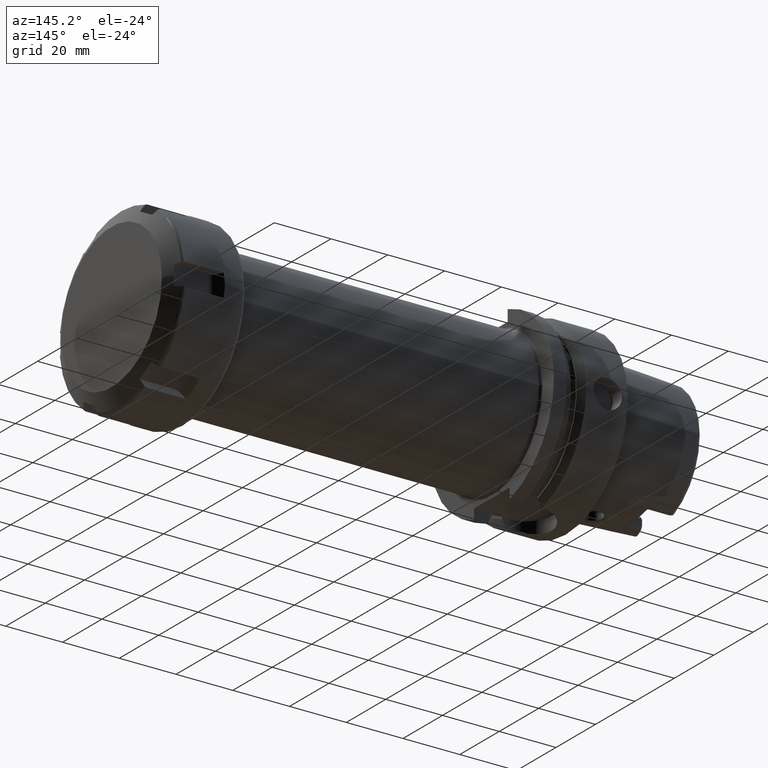
[diagram: clean part render]
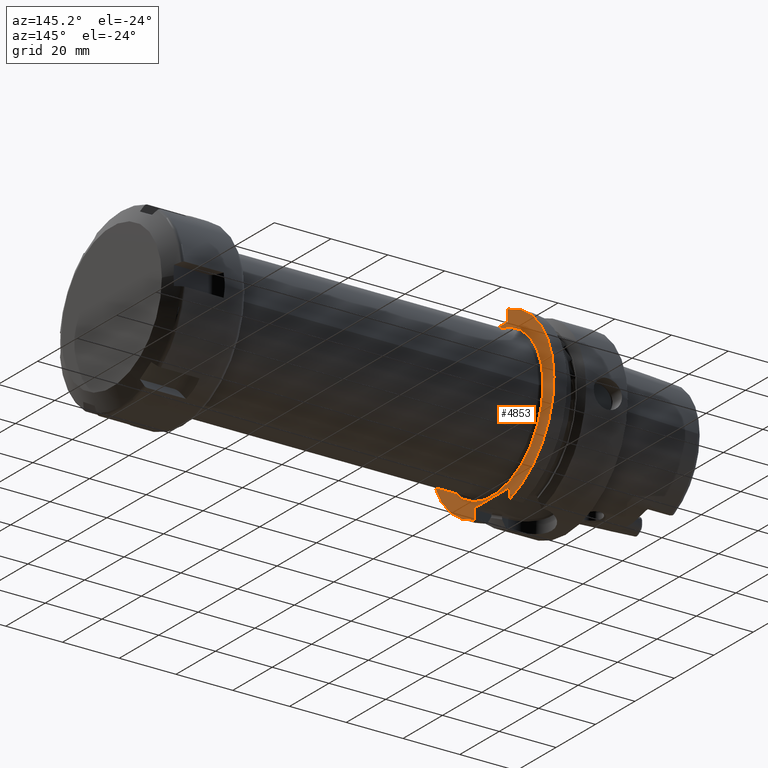
[diagram: same view with one face highlighted and labeled with its STEP entity id]
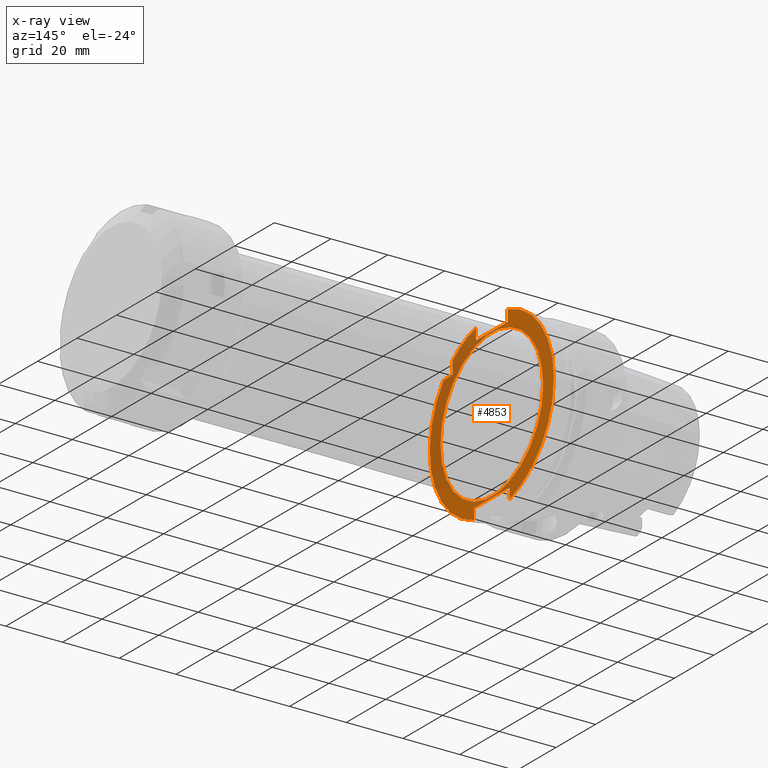
[diagram: x-ray of the same camera — body ghosted, the highlighted face saturated]
A machine part, auxiliary view. The second image highlights one B-rep face of the part: STEP entity #4853.
The next image is the same camera in x-ray: the body ghosted, the highlighted face saturated — about 35% of this face is hidden behind the body in this view.
In plain terms, the highlighted planar face has unit normal (1, 0, 0).
Its self-contained STEP definition (entity closure, byte-faithful):
#1343=DIRECTION('',(0.E0,7.071067811865E-1,-7.071067811866E-1));
#1344=VECTOR('',#1343,5.656854249492E-1);
#1345=CARTESIAN_POINT('',(2.6E1,8.6175E0,-2.64E1));
#1346=LINE('',#1345,#1344);
#1565=CARTESIAN_POINT('',(2.6E1,0.E0,0.E0));
#1566=DIRECTION('',(1.E0,0.E0,0.E0));
#1567=DIRECTION('',(0.E0,2.862698412698E-1,-9.581490374568E-1));
#1568=AXIS2_PLACEMENT_3D('',#1565,#1566,#1567);
#1574=CARTESIAN_POINT('',(2.6E1,0.E0,0.E0));
#1575=DIRECTION('',(1.E0,0.E0,0.E0));
#1576=DIRECTION('',(0.E0,-7.764663384879E-1,6.301587301587E-1));
#1577=AXIS2_PLACEMENT_3D('',#1574,#1575,#1576);
#1583=CARTESIAN_POINT('',(2.6E1,0.E0,0.E0));
#1584=DIRECTION('',(1.E0,0.E0,0.E0));
#1585=DIRECTION('',(0.E0,-2.545238095238E-1,9.670665077364E-1));
#1586=AXIS2_PLACEMENT_3D('',#1583,#1584,#1585);
#1676=DIRECTION('',(0.E0,1.E0,0.E0));
#1677=VECTOR('',#1676,4.208689662367E0);
#1678=CARTESIAN_POINT('',(2.6E1,-2.445868966237E1,1.985E1));
#1679=LINE('',#1678,#1677);
#1680=DIRECTION('',(0.E0,0.E0,-1.E0));
#1681=VECTOR('',#1680,4.208689662367E0);
#1682=CARTESIAN_POINT('',(2.6E1,-1.985E1,2.445868966237E1));
#1683=LINE('',#1682,#1681);
#1684=DIRECTION('',(0.E0,0.E0,-1.E0));
#1685=VECTOR('',#1684,4.062594993697E0);
#1686=CARTESIAN_POINT('',(2.6E1,-8.0175E0,3.046259499370E1));
#1687=LINE('',#1686,#1685);
#1688=DIRECTION('',(0.E0,1.E0,0.E0));
#1689=VECTOR('',#1688,1.6035E1);
#1690=CARTESIAN_POINT('',(2.6E1,-8.0175E0,2.64E1));
#1691=LINE('',#1690,#1689);
#1692=DIRECTION('',(0.E0,0.E0,-1.E0));
#1693=VECTOR('',#1692,4.062594993697E0);
#1694=CARTESIAN_POINT('',(2.6E1,8.0175E0,3.046259499370E1));
#1695=LINE('',#1694,#1693);
#1696=DIRECTION('',(0.E0,0.E0,1.E0));
#1697=VECTOR('',#1696,3.381694679888E0);
#1698=CARTESIAN_POINT('',(2.6E1,9.0175E0,-3.018169467989E1));
#1699=LINE('',#1698,#1697);
#1700=DIRECTION('',(0.E0,-1.E0,0.E0));
#1701=VECTOR('',#1700,1.7235E1);
#1702=CARTESIAN_POINT('',(2.6E1,8.6175E0,-2.64E1));
#1703=LINE('',#1702,#1701);
#1704=DIRECTION('',(0.E0,0.E0,1.E0));
#1705=VECTOR('',#1704,3.381694679888E0);
#1706=CARTESIAN_POINT('',(2.6E1,-9.0175E0,-3.018169467989E1));
#1707=LINE('',#1706,#1705);
#1708=CARTESIAN_POINT('',(2.6E1,0.E0,0.E0));
#1709=DIRECTION('',(1.E0,0.E0,0.E0));
#1710=DIRECTION('',(0.E0,-1.E0,0.E0));
#1711=AXIS2_PLACEMENT_3D('',#1708,#1709,#1710);
#1713=CARTESIAN_POINT('',(2.6E1,0.E0,0.E0));
#1714=DIRECTION('',(1.E0,0.E0,0.E0));
#1715=DIRECTION('',(0.E0,1.E0,0.E0));
#1716=AXIS2_PLACEMENT_3D('',#1713,#1714,#1715);
#1737=DIRECTION('',(0.E0,-7.071067811865E-1,-7.071067811865E-1));
#1738=VECTOR('',#1737,5.656854249492E-1);
#1739=CARTESIAN_POINT('',(2.6E1,-1.985E1,2.025E1));
#1740=LINE('',#1739,#1738);
#1857=DIRECTION('',(0.E0,7.071067811865E-1,7.071067811865E-1));
#1858=VECTOR('',#1857,5.656854249492E-1);
#1859=CARTESIAN_POINT('',(2.6E1,-9.0175E0,-2.68E1));
#1860=LINE('',#1859,#1858);
#2897=CARTESIAN_POINT('',(2.6E1,8.6175E0,-2.64E1));
#2898=CARTESIAN_POINT('',(2.6E1,9.0175E0,-2.68E1));
#2899=VERTEX_POINT('',#2897);
#2900=VERTEX_POINT('',#2898);
#2901=CARTESIAN_POINT('',(2.6E1,-9.0175E0,-2.68E1));
#2902=CARTESIAN_POINT('',(2.6E1,-8.6175E0,-2.64E1));
#2903=VERTEX_POINT('',#2901);
#2904=VERTEX_POINT('',#2902);
#2919=CARTESIAN_POINT('',(2.6E1,-1.985E1,2.025E1));
#2920=CARTESIAN_POINT('',(2.6E1,-2.025E1,1.985E1));
#2921=VERTEX_POINT('',#2919);
#2922=VERTEX_POINT('',#2920);
#2938=CARTESIAN_POINT('',(2.6E1,-8.0175E0,2.64E1));
#2940=VERTEX_POINT('',#2938);
#2941=CARTESIAN_POINT('',(2.6E1,8.0175E0,2.64E1));
#2943=VERTEX_POINT('',#2941);
#3001=CARTESIAN_POINT('',(2.6E1,9.0175E0,-3.018169467989E1));
#3002=CARTESIAN_POINT('',(2.6E1,8.0175E0,3.046259499370E1));
#3003=VERTEX_POINT('',#3001);
#3004=VERTEX_POINT('',#3002);
#3008=CARTESIAN_POINT('',(2.6E1,-2.445868966237E1,1.985E1));
#3010=VERTEX_POINT('',#3008);
#3012=CARTESIAN_POINT('',(2.6E1,-1.985E1,2.445868966237E1));
#3014=VERTEX_POINT('',#3012);
#3032=CARTESIAN_POINT('',(2.6E1,-8.0175E0,3.046259499370E1));
#3033=VERTEX_POINT('',#3032);
#3034=CARTESIAN_POINT('',(2.6E1,-9.0175E0,-3.018169467989E1));
#3035=VERTEX_POINT('',#3034);
#3036=CARTESIAN_POINT('',(2.6E1,-2.6E1,0.E0));
#3037=CARTESIAN_POINT('',(2.6E1,2.6E1,0.E0));
#3038=VERTEX_POINT('',#3036);
#3039=VERTEX_POINT('',#3037);
#4821=CARTESIAN_POINT('',(2.6E1,0.E0,0.E0));
#4822=DIRECTION('',(1.E0,0.E0,0.E0));
#4823=DIRECTION('',(0.E0,-1.E0,0.E0));
#4824=AXIS2_PLACEMENT_3D('',#4821,#4822,#4823);
#4825=PLANE('',#4824);
#4827=ORIENTED_EDGE('',*,*,#4826,.T.);
#4829=ORIENTED_EDGE('',*,*,#4828,.F.);
#4831=ORIENTED_EDGE('',*,*,#4830,.F.);
#4832=ORIENTED_EDGE('',*,*,#4791,.F.);
#4833=ORIENTED_EDGE('',*,*,#4662,.T.);
#4834=ORIENTED_EDGE('',*,*,#4629,.T.);
#4835=ORIENTED_EDGE('',*,*,#4724,.F.);
#4836=ORIENTED_EDGE('',*,*,#4757,.F.);
#4837=ORIENTED_EDGE('',*,*,#4463,.T.);
#4838=ORIENTED_EDGE('',*,*,#4504,.F.);
#4839=ORIENTED_EDGE('',*,*,#4582,.T.);
#4841=ORIENTED_EDGE('',*,*,#4840,.F.);
#4843=ORIENTED_EDGE('',*,*,#4842,.F.);
#4844=ORIENTED_EDGE('',*,*,#4772,.F.);
#4845=EDGE_LOOP('',(#4827,#4829,#4831,#4832,#4833,#4834,#4835,#4836,#4837,#4838,
#4839,#4841,#4843,#4844));
#4846=FACE_OUTER_BOUND('',#4845,.F.);
#4848=ORIENTED_EDGE('',*,*,#4847,.T.);
#4850=ORIENTED_EDGE('',*,*,#4849,.T.);
#4851=EDGE_LOOP('',(#4848,#4850));
#4852=FACE_BOUND('',#4851,.F.);
#4853=ADVANCED_FACE('',(#4846,#4852),#4825,.T.);
#1569=CIRCLE('',#1568,3.15E1);
#1578=CIRCLE('',#1577,3.15E1);
#1587=CIRCLE('',#1586,3.15E1);
#1712=CIRCLE('',#1711,2.6E1);
#1717=CIRCLE('',#1716,2.6E1);
#4463=EDGE_CURVE('',#3003,#2900,#1699,.T.);
#4504=EDGE_CURVE('',#2899,#2900,#1346,.T.);
#4582=EDGE_CURVE('',#2899,#2904,#1703,.T.);
#4629=EDGE_CURVE('',#2940,#2943,#1691,.T.);
#4662=EDGE_CURVE('',#3033,#2940,#1687,.T.);
#4724=EDGE_CURVE('',#3004,#2943,#1695,.T.);
#4757=EDGE_CURVE('',#3003,#3004,#1569,.T.);
#4772=EDGE_CURVE('',#3010,#3035,#1578,.T.);
#4791=EDGE_CURVE('',#3033,#3014,#1587,.T.);
#4826=EDGE_CURVE('',#3010,#2922,#1679,.T.);
#4828=EDGE_CURVE('',#2921,#2922,#1740,.T.);
#4830=EDGE_CURVE('',#3014,#2921,#1683,.T.);
#4840=EDGE_CURVE('',#2903,#2904,#1860,.T.);
#4842=EDGE_CURVE('',#3035,#2903,#1707,.T.);
#4847=EDGE_CURVE('',#3038,#3039,#1712,.T.);
#4849=EDGE_CURVE('',#3039,#3038,#1717,.T.);